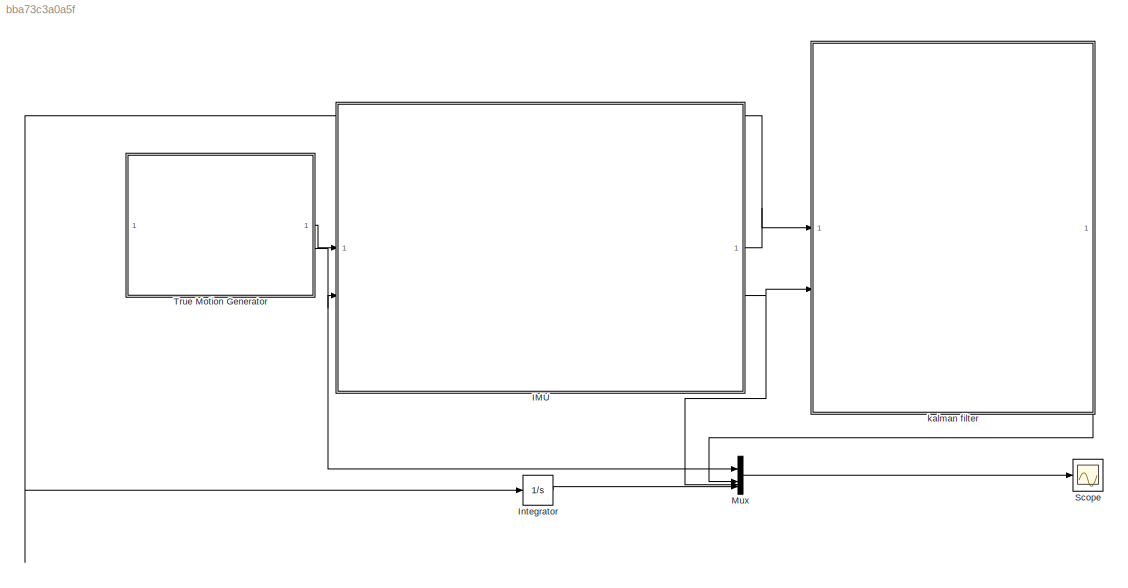
MODEL slx_bba73c3a0a5f
KIND model
CONFIG AbsTol = auto
CONFIG EnableMultiTasking = off
CONFIG FixedStep = auto
CONFIG MaxStep = auto
CONFIG MinStep = auto
CONFIG RelTol = 1e-3
CONFIG SampleTimeConstraint = Unconstrained
CONFIG SolverName = ode45
CONFIG StartTime = 0.0
CONFIG StopTime = 10
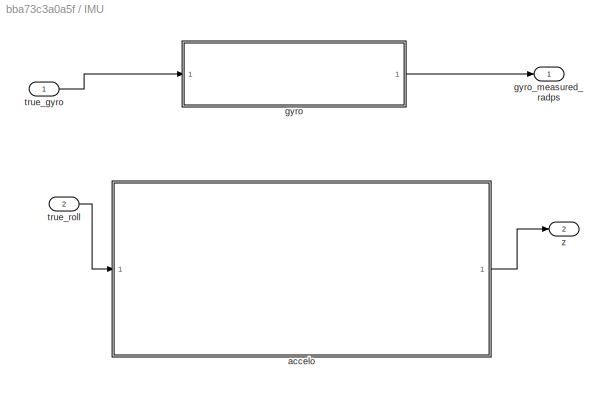
BLOCK [SubSystem] IMU
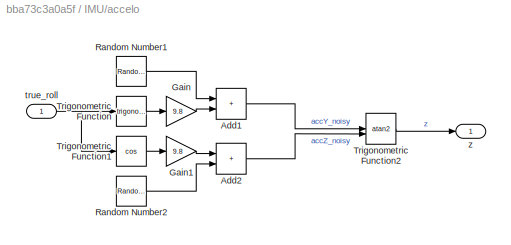
BLOCK [SubSystem] IMU/accelo
BLOCK [Sum] IMU/accelo/Add1
  IconShape = rectangular
BLOCK [Sum] IMU/accelo/Add2
  IconShape = rectangular
BLOCK [Gain] IMU/accelo/Gain
  Gain = 9.8
BLOCK [Gain] IMU/accelo/Gain1
  Gain = 9.8
BLOCK [RandomNumber] IMU/accelo/Random Number1
  SampleTime = 0.1
  Variance = 0.01
BLOCK [RandomNumber] IMU/accelo/Random Number2
  SampleTime = 0.1
  Variance = 0.01
BLOCK [Trigonometry] IMU/accelo/Trigonometric Function
BLOCK [Trigonometry] IMU/accelo/Trigonometric Function1
  Operator = cos
BLOCK [Trigonometry] IMU/accelo/Trigonometric Function2
  Operator = atan2
BLOCK [Inport] IMU/accelo/true_roll
BLOCK [Outport] IMU/accelo/z
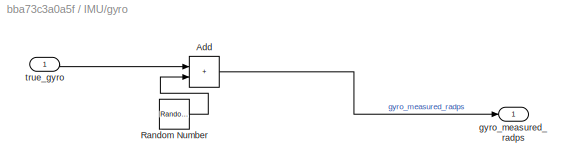
BLOCK [SubSystem] IMU/gyro
BLOCK [Sum] IMU/gyro/Add
  IconShape = rectangular
BLOCK [RandomNumber] IMU/gyro/Random Number
  SampleTime = 0.1
  Variance = 0.01
BLOCK [Outport] IMU/gyro/gyro_measured_radps
  NameLocation = right
BLOCK [Inport] IMU/gyro/true_gyro
  NameLocation = top
BLOCK [Outport] IMU/gyro_measured_radps
BLOCK [Inport] IMU/true_gyro
BLOCK [Inport] IMU/true_roll
  Port = 2
BLOCK [Outport] IMU/z
  Port = 2
BLOCK [Integrator] Integrator
BLOCK [Mux] Mux
  DisplayOption = bar
BLOCK [Scope] Scope
  Floating = off
  NumInputPorts = 1
  ScopeSpecificationString = Simulink.scopes.TimeScopeBlockCfg('CurrentConfiguration', extmgr.ConfigurationSet(extmgr.Configuration('Core','General UI',true),extmgr.Configuration('Core','Source UI',true),extmgr.Configuration('Sources','WiredSimulink',true),extmgr.Configuration('Visuals','Time Domain',true,'SerializedDisplays',{struct('MinYLimReal','-1.01492','MaxYLimReal','1.06538','YLabelReal','','MinYLimMag','0.00000','MaxY...<+1648ch>
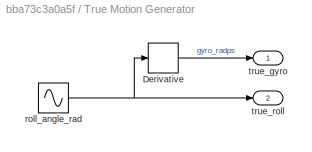
BLOCK [SubSystem] True Motion Generator
BLOCK [Derivative] True Motion Generator/Derivative
BLOCK [Sin] True Motion Generator/roll_angle_rad
  Amplitude = pi/4
  SampleTime = 0
BLOCK [Outport] True Motion Generator/true_gyro
BLOCK [Outport] True Motion Generator/true_roll
  Port = 2
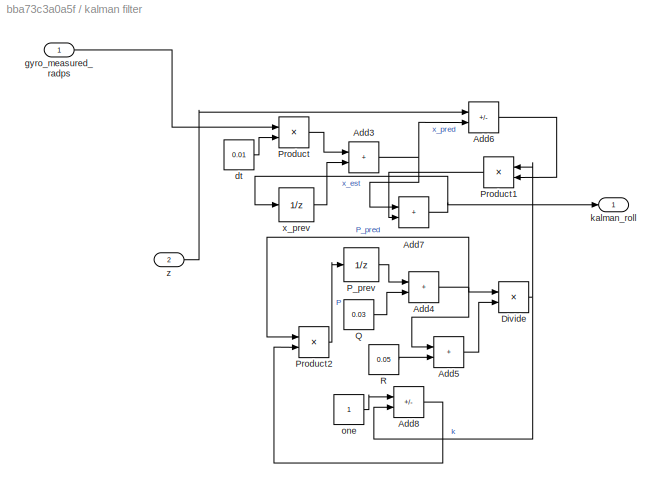
BLOCK [SubSystem] kalman filter
BLOCK [Sum] kalman filter/Add3
  IconShape = rectangular
BLOCK [Sum] kalman filter/Add4
  IconShape = rectangular
BLOCK [Sum] kalman filter/Add5
  IconShape = rectangular
BLOCK [Sum] kalman filter/Add6
  IconShape = rectangular
  Inputs = +-
BLOCK [Sum] kalman filter/Add7
  IconShape = rectangular
BLOCK [Sum] kalman filter/Add8
  IconShape = rectangular
  Inputs = +-
BLOCK [Product] kalman filter/Divide
  Inputs = */
BLOCK [UnitDelay] kalman filter/P_prev
  HasFrameUpgradeWarning = on
  SampleTime = -1
BLOCK [Product] kalman filter/Product
BLOCK [Product] kalman filter/Product1
  NameLocation = top
BLOCK [Product] kalman filter/Product2
BLOCK [Constant] kalman filter/Q
  Value = 0.03
BLOCK [Constant] kalman filter/R
  Value = 0.05
BLOCK [Constant] kalman filter/dt
  Value = 0.01
BLOCK [Inport] kalman filter/gyro_measured_radps
BLOCK [Outport] kalman filter/kalman_roll
BLOCK [Constant] kalman filter/one
BLOCK [UnitDelay] kalman filter/x_prev
  HasFrameUpgradeWarning = on
  SampleTime = -1
BLOCK [Inport] kalman filter/z
  Port = 2
LINE IMU/accelo/Add1:1 -> IMU/accelo/Trigonometric Function2:1
LINE IMU/accelo/Add2:1 -> IMU/accelo/Trigonometric Function2:2
LINE IMU/accelo/Gain1:1 -> IMU/accelo/Add2:1
LINE IMU/accelo/Gain:1 -> IMU/accelo/Add1:2
LINE IMU/accelo/Random Number1:1 -> IMU/accelo/Add1:1
LINE IMU/accelo/Random Number2:1 -> IMU/accelo/Add2:2
LINE IMU/accelo/Trigonometric Function1:1 -> IMU/accelo/Gain1:1
LINE IMU/accelo/Trigonometric Function2:1 -> IMU/accelo/z:1
LINE IMU/accelo/Trigonometric Function:1 -> IMU/accelo/Gain:1
NET IMU/accelo/true_roll:1 -> IMU/accelo/Trigonometric Function1:1, IMU/accelo/Trigonometric Function:1
LINE IMU/accelo:1 -> IMU/z:1
LINE IMU/gyro/Add:1 -> IMU/gyro/gyro_measured_radps:1
LINE IMU/gyro/Random Number:1 -> IMU/gyro/Add:2
LINE IMU/gyro/true_gyro:1 -> IMU/gyro/Add:1
LINE IMU/gyro:1 -> IMU/gyro_measured_radps:1
LINE IMU/true_gyro:1 -> IMU/gyro:1
LINE IMU/true_roll:1 -> IMU/accelo:1
NET IMU:1 -> Integrator:1, kalman filter:1
NET IMU:2 -> Mux:3, kalman filter:2
LINE Integrator:1 -> Mux:4
LINE Mux:1 -> Scope:1
LINE True Motion Generator/Derivative:1 -> True Motion Generator/true_gyro:1
NET True Motion Generator/roll_angle_rad:1 -> True Motion Generator/Derivative:1, True Motion Generator/true_roll:1
LINE True Motion Generator:1 -> IMU:1
NET True Motion Generator:2 -> IMU:2, Mux:1
NET kalman filter/Add3:1 -> kalman filter/Add6:2, kalman filter/Add7:1
NET kalman filter/Add4:1 -> kalman filter/Add5:1, kalman filter/Divide:1, kalman filter/Product2:1
LINE kalman filter/Add5:1 -> kalman filter/Divide:2
LINE kalman filter/Add6:1 -> kalman filter/Product1:2
NET kalman filter/Add7:1 -> kalman filter/kalman_roll:1, kalman filter/x_prev:1
LINE kalman filter/Add8:1 -> kalman filter/Product2:2
NET kalman filter/Divide:1 -> kalman filter/Add8:2, kalman filter/Product1:1
LINE kalman filter/P_prev:1 -> kalman filter/Add4:1
LINE kalman filter/Product1:1 -> kalman filter/Add7:2
LINE kalman filter/Product2:1 -> kalman filter/P_prev:1
LINE kalman filter/Product:1 -> kalman filter/Add3:1
LINE kalman filter/Q:1 -> kalman filter/Add4:2
LINE kalman filter/R:1 -> kalman filter/Add5:2
LINE kalman filter/dt:1 -> kalman filter/Product:2
LINE kalman filter/gyro_measured_radps:1 -> kalman filter/Product:1
LINE kalman filter/one:1 -> kalman filter/Add8:1
LINE kalman filter/x_prev:1 -> kalman filter/Add3:2
LINE kalman filter/z:1 -> kalman filter/Add6:1
LINE kalman filter:1 -> Mux:2
note: NET lines group one-source signal fan-out (src -> all destinations, sorted); 1:1 wires keep LINE
